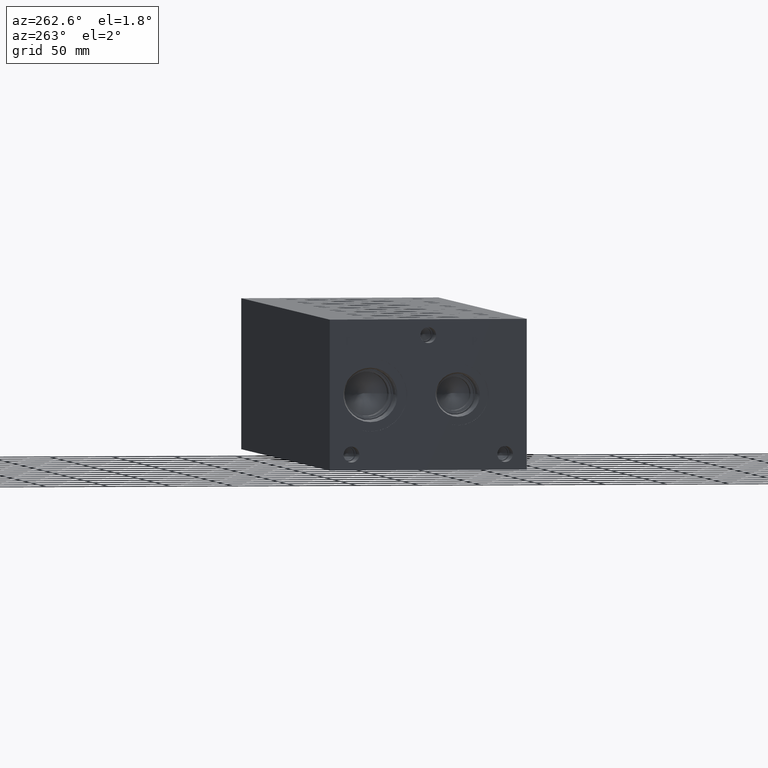
[diagram: clean part render]
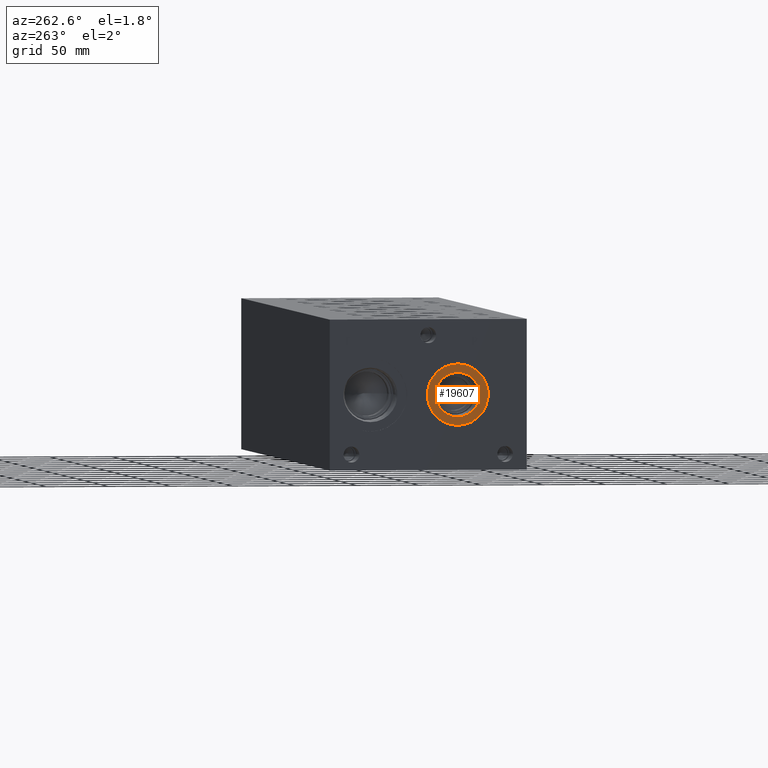
[diagram: same view with one face highlighted and labeled with its STEP entity id]
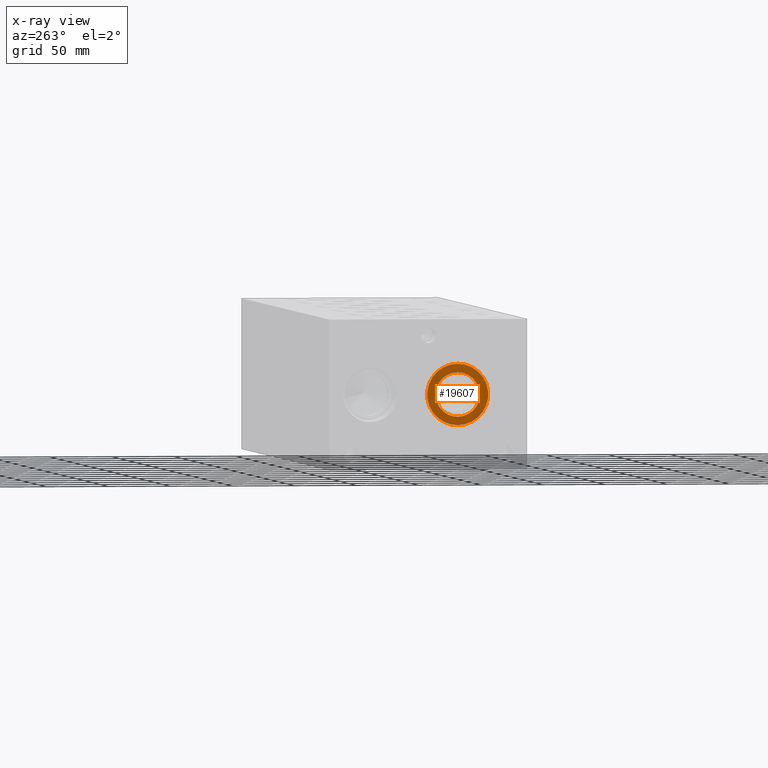
[diagram: x-ray of the same camera — body ghosted, the highlighted face saturated]
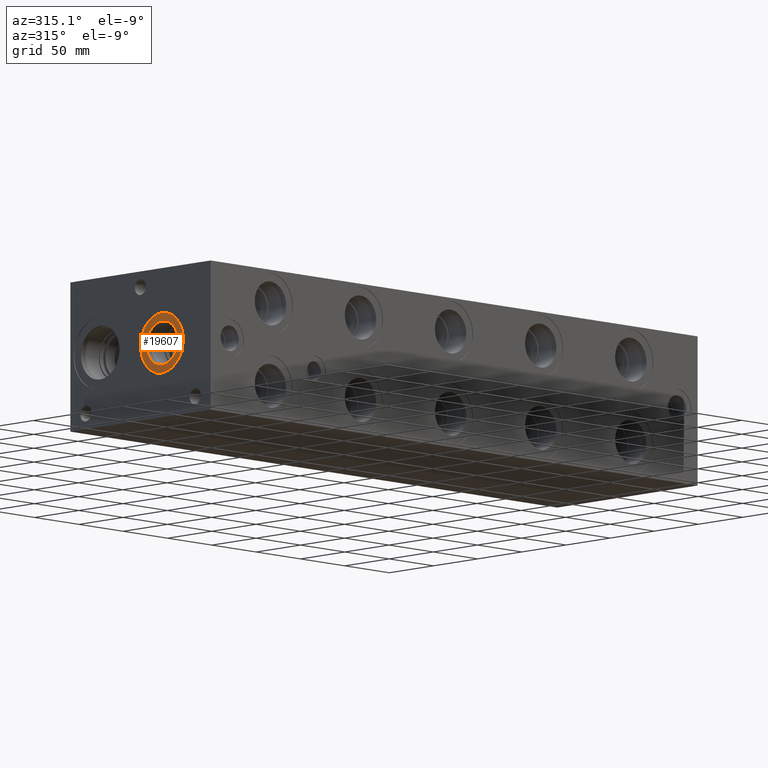
[diagram: same view with one face highlighted and labeled with its STEP entity id]
A machine part, auxiliary view. The second image highlights one B-rep face of the part: STEP entity #19607.
The next image is the same camera in x-ray: the body ghosted, the highlighted face saturated — about 0% of this face is hidden behind the body in this view.
A second angle (auxiliary view) of the same face is appended — the face is thin or edge-on in the first view.
In plain terms, the highlighted planar face has unit normal (1, 0, 0).
Its self-contained STEP definition (entity closure, byte-faithful):
#906=CIRCLE('',#20847,24.5618);
#907=CIRCLE('',#20848,24.5618);
#908=CIRCLE('',#20850,17.7546);
#909=CIRCLE('',#20851,17.7546);
#1766=FACE_BOUND('',#3839,.T.);
#2664=FACE_OUTER_BOUND('',#3838,.T.);
#3838=EDGE_LOOP('',(#16404,#16405));
#3839=EDGE_LOOP('',(#16406,#16407));
#9016=VERTEX_POINT('',#33125);
#9017=VERTEX_POINT('',#33127);
#9018=VERTEX_POINT('',#33131);
#9019=VERTEX_POINT('',#33132);
#11604=EDGE_CURVE('',#9016,#9017,#906,.T.);
#11605=EDGE_CURVE('',#9017,#9016,#907,.T.);
#11606=EDGE_CURVE('',#9018,#9019,#908,.T.);
#11607=EDGE_CURVE('',#9019,#9018,#909,.T.);
#16404=ORIENTED_EDGE('',*,*,#11605,.F.);
#16405=ORIENTED_EDGE('',*,*,#11604,.F.);
#16406=ORIENTED_EDGE('',*,*,#11606,.T.);
#16407=ORIENTED_EDGE('',*,*,#11607,.T.);
#18181=PLANE('',#20849);
#19607=ADVANCED_FACE('',(#2664,#1766),#18181,.F.);
#20847=AXIS2_PLACEMENT_3D('',#33128,#24889,#24890);
#20848=AXIS2_PLACEMENT_3D('',#33129,#24891,#24892);
#20849=AXIS2_PLACEMENT_3D('',#33130,#24893,#24894);
#20850=AXIS2_PLACEMENT_3D('',#33133,#24895,#24896);
#20851=AXIS2_PLACEMENT_3D('',#33134,#24897,#24898);
#24889=DIRECTION('center_axis',(1.,0.,0.));
#24890=DIRECTION('ref_axis',(0.,0.,-1.));
#24891=DIRECTION('center_axis',(1.,0.,0.));
#24892=DIRECTION('ref_axis',(0.,0.,-1.));
#24893=DIRECTION('center_axis',(1.,0.,0.));
#24894=DIRECTION('ref_axis',(0.,0.,-1.));
#24895=DIRECTION('center_axis',(1.,0.,0.));
#24896=DIRECTION('ref_axis',(0.,0.,-1.));
#24897=DIRECTION('center_axis',(1.,0.,0.));
#24898=DIRECTION('ref_axis',(0.,0.,-1.));
#33125=CARTESIAN_POINT('',(0.7874,55.5752,35.7632));
#33127=CARTESIAN_POINT('',(0.7874,55.5752,84.8868));
#33128=CARTESIAN_POINT('Origin',(0.7874,55.5752,60.325));
#33129=CARTESIAN_POINT('Origin',(0.7874,55.5752,60.325));
#33130=CARTESIAN_POINT('Origin',(0.7874,55.5752,78.0796));
#33131=CARTESIAN_POINT('',(0.7874,55.5752,78.0796));
#33132=CARTESIAN_POINT('',(0.787400000000001,55.5752,42.5704));
#33133=CARTESIAN_POINT('Origin',(0.7874,55.5752,60.325));
#33134=CARTESIAN_POINT('Origin',(0.7874,55.5752,60.325));